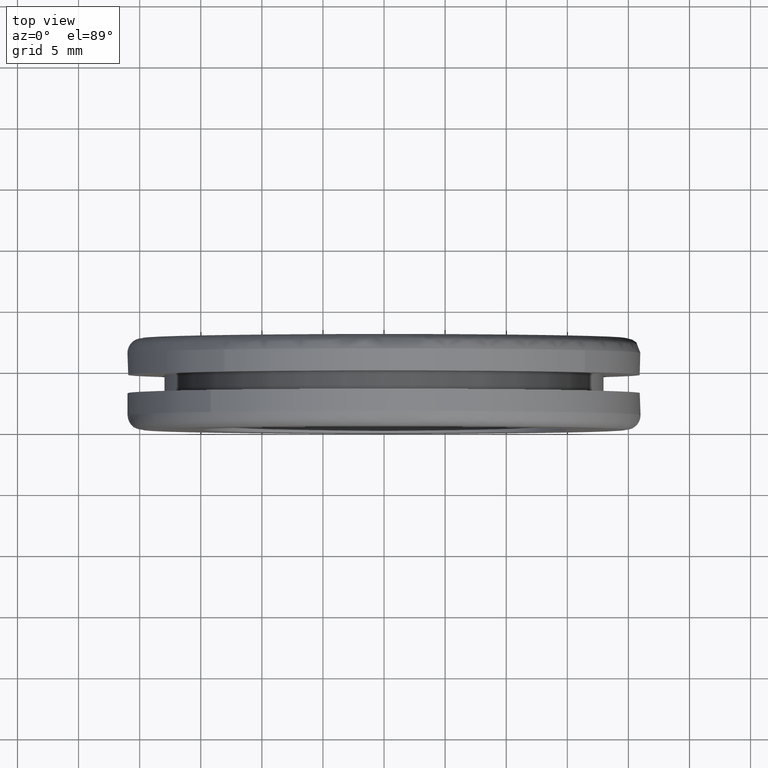
[diagram: clean part render]
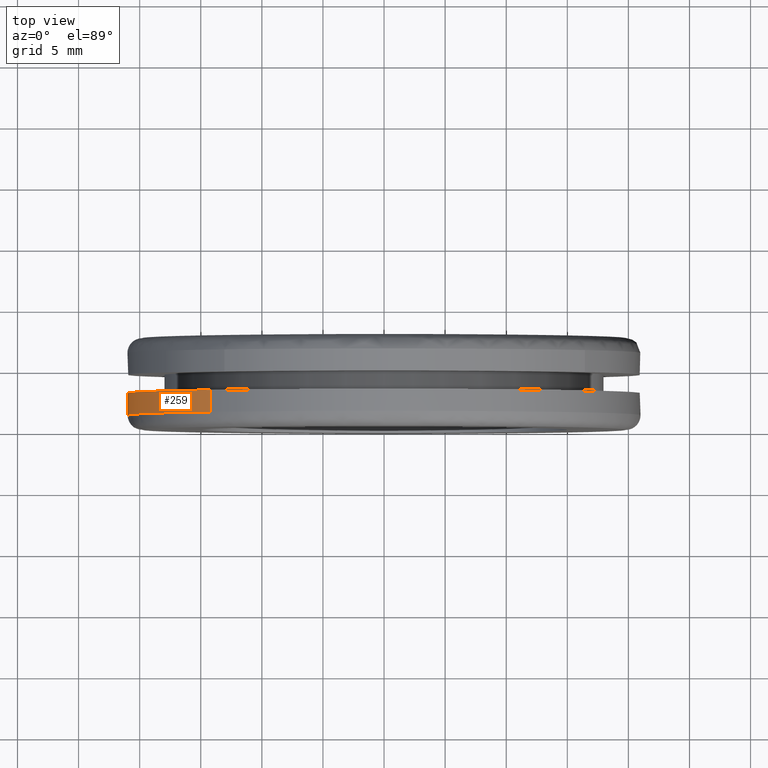
[diagram: same view with one face highlighted and labeled with its STEP entity id]
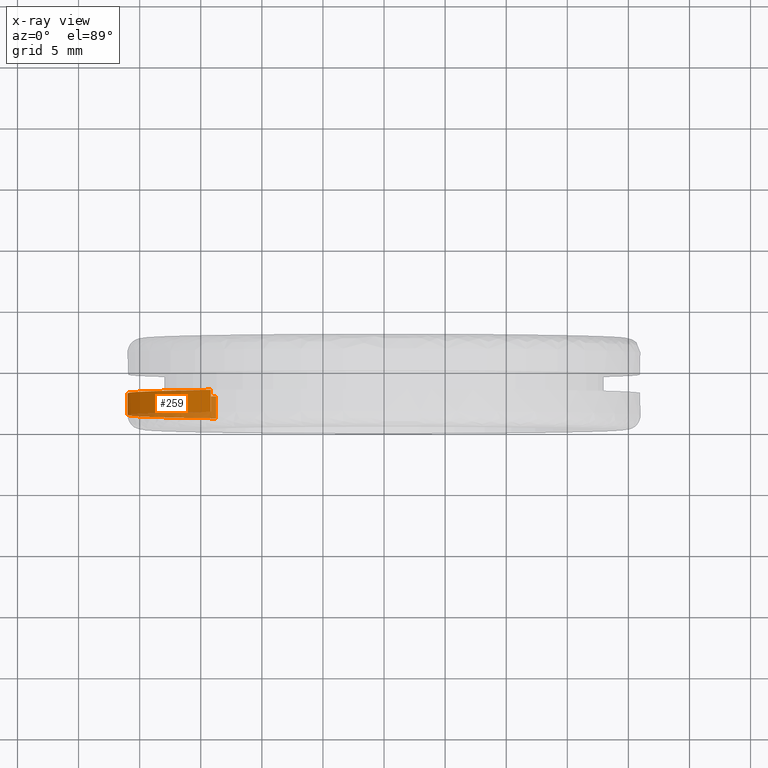
[diagram: x-ray of the same camera — body ghosted, the highlighted face saturated]
A machine part, top view. The second image highlights one B-rep face of the part: STEP entity #259.
The next image is the same camera in x-ray: the body ghosted, the highlighted face saturated — about 21% of this face is hidden behind the body in this view.
In plain terms, the highlighted face is a freeform B-spline surface patch.
Its self-contained STEP definition (entity closure, byte-faithful):
#66=CARTESIAN_POINT('',(-13.741132103384320,3.000000000000033,-15.880216891382180));
#67=VERTEX_POINT('',#66);
#100=CARTESIAN_POINT('',(-14.187393528154630,3.0,15.482824835193190));
#101=VERTEX_POINT('',#100);
#115=CARTESIAN_POINT('',(-14.187393490254490,1.199999999972146,15.482824869922180));
#116=VERTEX_POINT('',#115);
#117=CARTESIAN_POINT('',(-14.187393528154630,3.0,15.482824835193190));
#118=CARTESIAN_POINT('',(-14.187393490254490,1.199999999972146,15.482824869922180));
#119=QUASI_UNIFORM_CURVE('',1,(#117,#118),.UNSPECIFIED.,.F.,.U.);
#120=EDGE_CURVE('',#101,#116,#119,.T.);
#169=CARTESIAN_POINT('',(-13.741132111742621,1.200000000000000,-15.880216884149750));
#170=VERTEX_POINT('',#169);
#184=CARTESIAN_POINT('',(-13.741132103384320,3.000000000000033,-15.880216891382180));
#185=CARTESIAN_POINT('',(-13.741132111742621,1.200000000000000,-15.880216884149750));
#186=QUASI_UNIFORM_CURVE('',1,(#184,#185),.UNSPECIFIED.,.F.,.U.);
#187=EDGE_CURVE('',#67,#170,#186,.T.);
#192=CARTESIAN_POINT('',(-14.187394359928859,3.045000000002588,15.482824073012599));
#193=CARTESIAN_POINT('',(-29.670218432941464,3.045000000002589,1.295429713083735));
#194=CARTESIAN_POINT('',(-15.482824073012599,3.045000000002588,-14.187394359928859));
#195=CARTESIAN_POINT('',(-14.661007491975170,3.045000000002589,-15.084249781134682));
#196=CARTESIAN_POINT('',(-13.741132797056794,3.045000000002589,-15.880216291148233));
#197=CARTESIAN_POINT('',(-14.187394359928859,1.153874999893835,15.482824073012599));
#198=CARTESIAN_POINT('',(-29.670218432941464,1.153874999893835,1.295429713083735));
#199=CARTESIAN_POINT('',(-15.482824073012599,1.153874999893835,-14.187394359928859));
#200=CARTESIAN_POINT('',(-14.661007491975170,1.153874999893835,-15.084249781134682));
#201=CARTESIAN_POINT('',(-13.741132797056794,1.153874999893835,-15.880216291148233));
#209=(BOUNDED_SURFACE()B_SPLINE_SURFACE(2,1,((#192,#197),(#193,#198),(#194,#199),(#195,#200),(#196,#201)),.UNSPECIFIED.,.F.,.F.,.U.)B_SPLINE_SURFACE_WITH_KNOTS((3,2,3),(2,2),(0.0,34.793939239339970,37.577454378487182),(0.0,1.0),.UNSPECIFIED.)GEOMETRIC_REPRESENTATION_ITEM()RATIONAL_B_SPLINE_SURFACE(((1.0,1.0),(0.707106781186548,0.707106781186548),(1.0,1.0),(0.976568542494924,0.976568542494924),(0.956886118190660,0.956886118190660)))REPRESENTATION_ITEM('')SURFACE());
#210=CARTESIAN_POINT('',(-14.187393528154642,3.0,15.482824835193217));
#211=CARTESIAN_POINT('',(-21.000000000000004,3.000000000000000,9.240221822025617));
#212=CARTESIAN_POINT('',(-21.0,3.0,-3.061516E-016));
#213=CARTESIAN_POINT('',(-20.999999999999996,3.000000000000000,-9.599128001649238));
#214=CARTESIAN_POINT('',(-13.741132103384322,3.000000000000033,-15.880216891382174));
#222=(BOUNDED_CURVE()B_SPLINE_CURVE(2,(#210,#211,#212,#213,#214),.UNSPECIFIED.,.F.,.U.)B_SPLINE_CURVE_WITH_KNOTS((3,2,3),(0.618415200974131,0.750000000000000,0.885882133147832),.UNSPECIFIED.)CURVE()GEOMETRIC_REPRESENTATION_ITEM()RATIONAL_B_SPLINE_CURVE((0.853959781838990,0.845838818665567,1.0,0.840804178572373,0.854663299575205))REPRESENTATION_ITEM(''));
#223=EDGE_CURVE('',#101,#67,#222,.T.);
#224=ORIENTED_EDGE('',*,*,#223,.T.);
#225=ORIENTED_EDGE('',*,*,#187,.T.);
#226=CARTESIAN_POINT('',(-20.993367974949280,1.199999999896488,0.527732004310620));
#227=VERTEX_POINT('',#226);
#228=CARTESIAN_POINT('',(-20.993367974949287,1.199999999896487,0.527732004310620));
#229=CARTESIAN_POINT('',(-21.000000000000004,1.200000000000000,0.263907674591503));
#230=CARTESIAN_POINT('',(-21.0,1.200000000000000,-3.061516E-016));
#231=CARTESIAN_POINT('',(-21.000000000000007,1.200000000000000,-9.599127988286659));
#232=CARTESIAN_POINT('',(-13.741132111742621,1.200000000000000,-15.880216884149755));
#240=(BOUNDED_CURVE()B_SPLINE_CURVE(2,(#228,#229,#230,#231,#232),.UNSPECIFIED.,.F.,.U.)B_SPLINE_CURVE_WITH_KNOTS((3,2,3),(0.745579891769799,0.750000000000000,0.885882132988789),.UNSPECIFIED.)CURVE()GEOMETRIC_REPRESENTATION_ITEM()RATIONAL_B_SPLINE_CURVE((0.989826157681556,0.994821521091810,1.0,0.840804178758704,0.854663299542762))REPRESENTATION_ITEM(''));
#241=EDGE_CURVE('',#227,#170,#240,.T.);
#242=ORIENTED_EDGE('',*,*,#241,.F.);
#243=CARTESIAN_POINT('',(-14.187393490254468,1.199999999972103,15.482824869922169));
#244=CARTESIAN_POINT('',(-20.769032832560868,1.199999999941611,9.451864244536521));
#245=CARTESIAN_POINT('',(-20.993367974949276,1.199999999896488,0.527732004310620));
#253=(BOUNDED_CURVE()B_SPLINE_CURVE(2,(#243,#244,#245),.UNSPECIFIED.,.F.,.U.)B_SPLINE_CURVE_WITH_KNOTS((3,3),(0.618415200604597,0.745579891769798),.UNSPECIFIED.)CURVE()GEOMETRIC_REPRESENTATION_ITEM()RATIONAL_B_SPLINE_CURVE((0.853959781884603,0.846111612190902,0.989826157681555))REPRESENTATION_ITEM(''));
#254=EDGE_CURVE('',#116,#227,#253,.T.);
#255=ORIENTED_EDGE('',*,*,#254,.F.);
#256=ORIENTED_EDGE('',*,*,#120,.F.);
#257=EDGE_LOOP('',(#224,#225,#242,#255,#256));
#258=FACE_OUTER_BOUND('',#257,.T.);
#259=ADVANCED_FACE('',(#258),#209,.T.);